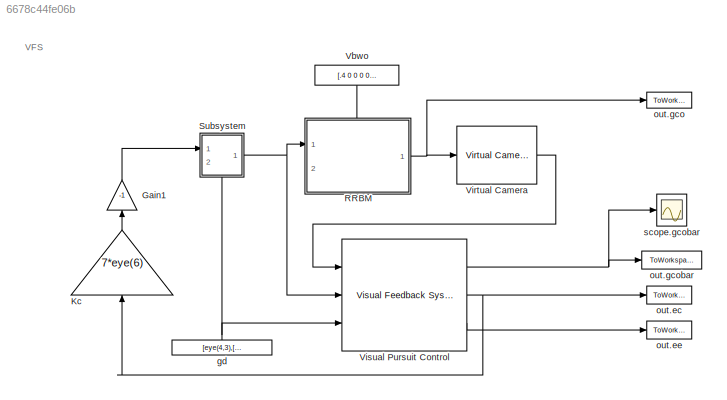
MODEL slx_6678c44fe06b
KIND model
CONFIG AbsTol = auto
CONFIG EnableMultiTasking = off
CONFIG FixedStep = 0.001
CONFIG MaxStep = auto
CONFIG MinStep = auto
CONFIG RelTol = 1e-3
CONFIG SampleTimeConstraint = Unconstrained
CONFIG SolverName = VariableStepAuto
CONFIG StartTime = 0.0
CONFIG StopTime = 20
WORKSPACE source: mxarray member
WORKSPACE lambda = 0.0016
WORKSPACE po = [0 0.5 0 -0.5 0 0 0 0 0.5 0 -0.5 0]
BLOCK [Gain] Gain1
  Gain = -1
  NameLocation = right
BLOCK [Gain] Kc
  Gain = 7*eye(6)
  Multiplication = Matrix(K*u) (u vector)
  NameLocation = left
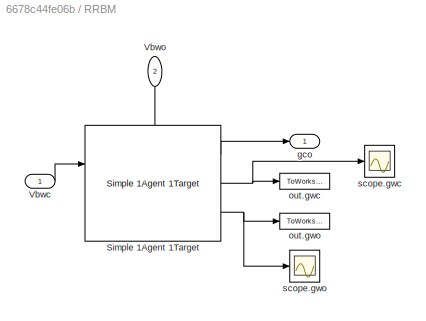
BLOCK [SubSystem] RRBM
  PortSchema = {"entries":[{"content":{"sides":[{"content":{"connectorIds":["In1"]},"type":"ConnectorPlacement.EquallySpacedRectSide","uuid":"ce1006a6-ff18-4db7-ad69-3a60144a672f"},{"content":{"connectorIds":["Out1"],"side":"RIGHT"},"type":"ConnectorPlacement.EquallySpacedRectSide","uuid":"9f6b7cf2-eb23-4db0-862a-f9244538bf77"},{"content":{"connectorIds":["In2"],"side":"TOP"},"type":"ConnectorPlacement.EquallySp...<+389ch>
  Ports = [2, 1]
  RequestExecContextInheritance = off
BLOCK [Reference] RRBM/Simple 1Agent 1Target  REF=simlib_vpc_basic/Simple 1Agent 1Target
  Ports = [2, 3]
  SourceBlock = simlib_vpc_basic/Simple 1Agent 1Target
  SourceProductName = VPC Library
  SourceType = Simple 1Agent 1 Target block [V1]
BLOCK [Inport] RRBM/Vbwc
BLOCK [Inport] RRBM/Vbwo
  NameLocation = left
  Port = 2
BLOCK [Outport] RRBM/gco
  NameLocation = top
BLOCK [ToWorkspace] RRBM/out.gwc
  FixptAsFi = on
  MaxDataPoints = inf
  Ports = [1]
  SampleTime = -1
  SaveFormat = Structure With Time
  VariableName = gwc
BLOCK [ToWorkspace] RRBM/out.gwo
  FixptAsFi = on
  MaxDataPoints = inf
  Ports = [1]
  SampleTime = -1
  SaveFormat = Structure With Time
  VariableName = gwo
BLOCK [Scope] RRBM/scope.gwc
  Floating = off
  NumInputPorts = 1
  Ports = [1]
  ScopeSpecificationString = Simulink.scopes.TimeScopeBlockCfg('CurrentConfiguration', extmgr.ConfigurationSet(extmgr.Configuration('Core','General UI',true),extmgr.Configuration('Core','Source UI',true),extmgr.Configuration('Sources','WiredSimulink',true,'DataLoggingVariableName','ScopeData2'),extmgr.Configuration('Visuals','Time Domain',true,'SerializedDisplays',{struct('MinYLimReal','-6.71698','MaxYLimReal','10.4528','YLab...<+1860ch>
BLOCK [Scope] RRBM/scope.gwo
  Floating = off
  NumInputPorts = 1
  Ports = [1]
  ScopeSpecificationString = Simulink.scopes.TimeScopeBlockCfg('CurrentConfiguration', extmgr.ConfigurationSet(extmgr.Configuration('Core','General UI',true),extmgr.Configuration('Core','Source UI',true),extmgr.Configuration('Sources','WiredSimulink',true,'DataLoggingVariableName','ScopeData1'),extmgr.Configuration('Visuals','Time Domain',true,'SerializedDisplays',{struct('MinYLimReal','-2.4118','MaxYLimReal','11.7062','YLabe...<+1858ch>
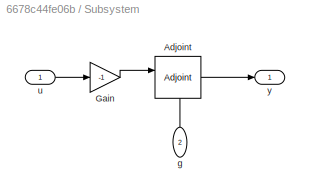
BLOCK [SubSystem] Subsystem
  PortSchema = {"entries":[{"content":{"sides":[{"content":{"connectorIds":["In1"]},"type":"ConnectorPlacement.EquallySpacedRectSide","uuid":"72e68008-5c4a-43a9-a560-64c6a31a0c08"},{"content":{"connectorIds":["Out1"],"side":"RIGHT"},"type":"ConnectorPlacement.EquallySpacedRectSide","uuid":"da07f5ff-2b2c-4c55-a2f2-34e133777503"},{"content":{"connectorIds":[],"side":"TOP"},"type":"ConnectorPlacement.EquallySpacedR...<+533ch>
  Ports = [2, 1]
  RequestExecContextInheritance = off
BLOCK [Reference] Subsystem/Adjoint  REF=simlib_vpc_basic/Adjoint
  NameLocation = top
  Ports = [2, 1]
  SourceBlock = simlib_vpc_basic/Adjoint
  SourceProductName = VPC Library
  SourceType = Adjoint Matrix [V1]
BLOCK [Gain] Subsystem/Gain
  Gain = -1
BLOCK [Inport] Subsystem/g
  NameLocation = right
  Port = 2
BLOCK [Inport] Subsystem/u
BLOCK [Outport] Subsystem/y
BLOCK [Constant] Vbwo
  NameLocation = right
  Value = [.4 0 0 0 0 -pi/6]
BLOCK [Reference] Virtual Camera  REF=simlib_vpc_basic/Virtual Camera
  Ports = [1, 1]
  SourceBlock = simlib_vpc_basic/Virtual Camera
  SourceProductName = VPC Library
  SourceType = Virtual Camera model [V1]
BLOCK [Reference] Visual Pursuit Control  REF=simlib_vpc_basic/Visual Feedback System
  Ports = [3, 3]
  SourceBlock = simlib_vpc_basic/Visual Feedback System
  SourceProductName = VPC Library
  SourceType = Visual Pursuit Control [V1]
BLOCK [Constant] gd
  Value = [eye(4,3),[0 2 0 1]']
BLOCK [ToWorkspace] out.ec
  FixptAsFi = on
  MaxDataPoints = inf
  Ports = [1]
  SampleTime = -1
  SaveFormat = Structure With Time
  VariableName = ec
BLOCK [ToWorkspace] out.ee
  FixptAsFi = on
  MaxDataPoints = inf
  Ports = [1]
  SampleTime = -1
  SaveFormat = Structure With Time
  VariableName = ee
BLOCK [ToWorkspace] out.gco
  FixptAsFi = on
  MaxDataPoints = inf
  Ports = [1]
  SampleTime = -1
  SaveFormat = Structure With Time
  VariableName = gco
BLOCK [ToWorkspace] out.gcobar
  FixptAsFi = on
  MaxDataPoints = inf
  Ports = [1]
  SampleTime = -1
  SaveFormat = Structure With Time
  VariableName = gcobar
BLOCK [Scope] scope.gcobar
  Floating = off
  NumInputPorts = 1
  Ports = [1]
  ScopeSpecificationString = Simulink.scopes.TimeScopeBlockCfg('CurrentConfiguration', extmgr.ConfigurationSet(extmgr.Configuration('Core','General UI',true),extmgr.Configuration('Core','Source UI',true),extmgr.Configuration('Sources','WiredSimulink',true),extmgr.Configuration('Visuals','Time Domain',true,'SerializedDisplays',{struct('MinYLimReal','-0.4173','MaxYLimReal','2.21403','YLabelReal','','MinYLimMag','0.00000','MaxYL...<+1835ch>
ANNOTATION (root): VFS
LINE Gain1:1 -> Subsystem:1
LINE Kc:1 -> Gain1:1
LINE RRBM/Simple 1Agent 1Target:1 -> RRBM/gco:1
NET RRBM/Simple 1Agent 1Target:2 -> RRBM/out.gwc:1, RRBM/scope.gwc:1
NET RRBM/Simple 1Agent 1Target:3 -> RRBM/out.gwo:1, RRBM/scope.gwo:1
LINE RRBM/Vbwc:1 -> RRBM/Simple 1Agent 1Target:1
LINE RRBM/Vbwo:1 -> RRBM/Simple 1Agent 1Target:2
NET RRBM:1 -> Virtual Camera:1, out.gco:1
LINE Subsystem/Adjoint:1 -> Subsystem/y:1
LINE Subsystem/Gain:1 -> Subsystem/Adjoint:1
LINE Subsystem/g:1 -> Subsystem/Adjoint:2
LINE Subsystem/u:1 -> Subsystem/Gain:1
NET Subsystem:1 -> RRBM:1, Visual Pursuit Control:2
LINE Vbwo:1 -> RRBM:2
LINE Virtual Camera:1 -> Visual Pursuit Control:1
NET Visual Pursuit Control:1 -> out.gcobar:1, scope.gcobar:1
NET Visual Pursuit Control:2 -> Kc:1, out.ec:1
LINE Visual Pursuit Control:3 -> out.ee:1
NET gd:1 -> Subsystem:2, Visual Pursuit Control:3
note: NET lines group one-source signal fan-out (src -> all destinations, sorted); 1:1 wires keep LINE
